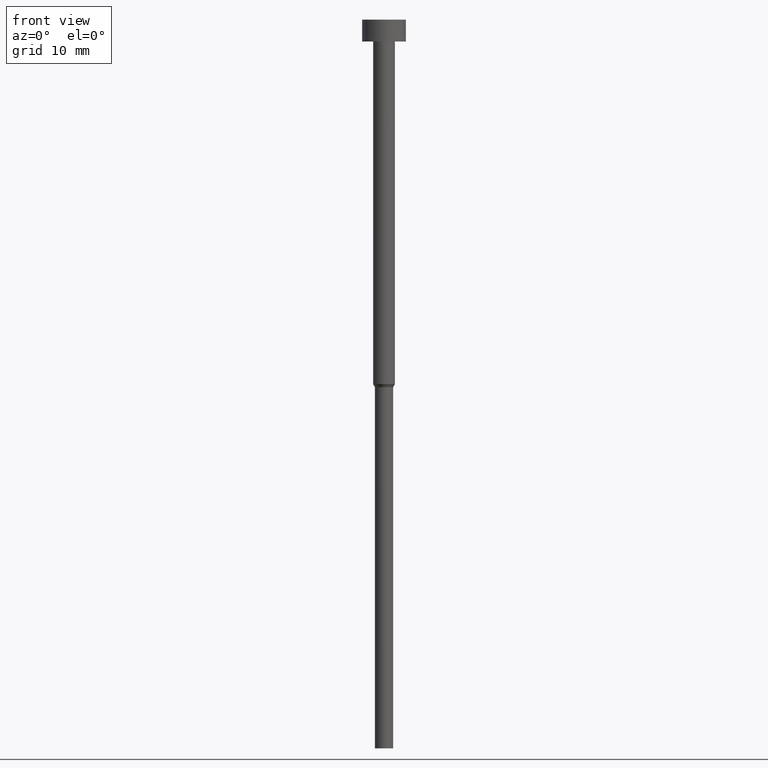
[diagram: clean part render]
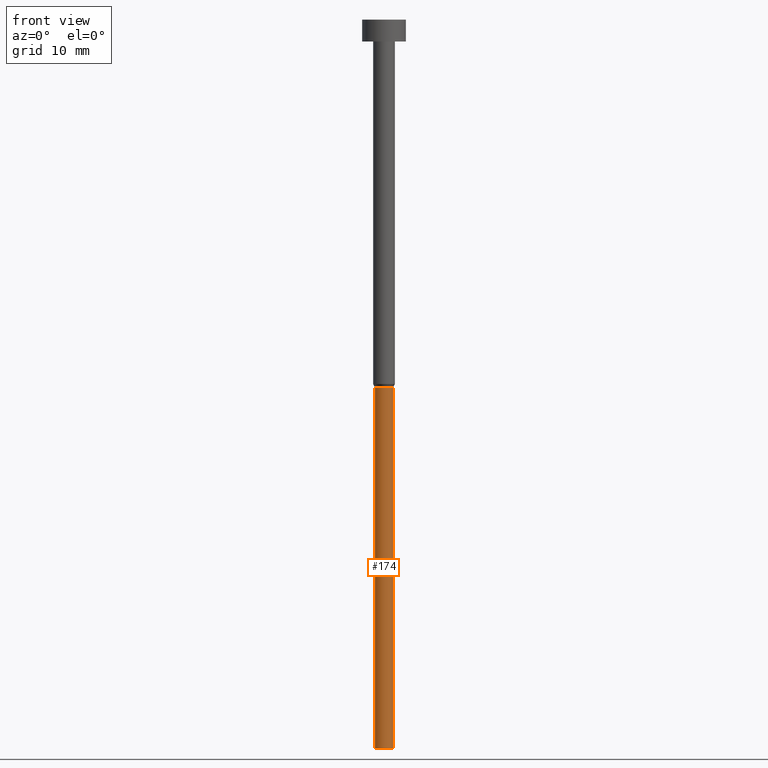
[diagram: same view with one face highlighted and labeled with its STEP entity id]
A machine part, front view. The second image highlights one B-rep face of the part: STEP entity #174.
In plain terms, the highlighted cylindrical surface (edge-blend (fillet) strip) has radius 1.25 mm, axis along (-0, -0, 1).
Its self-contained STEP definition (entity closure, byte-faithful):
#1 = DIRECTION ( 'NONE',  ( -0.000000000000000000, -0.000000000000000000, 1.000000000000000000 ) ) ;
#7 = CYLINDRICAL_SURFACE ( 'NONE', #135, 1.250000000000000000 ) ;
#10 = DIRECTION ( 'NONE',  ( -0.000000000000000000, -0.000000000000000000, 1.000000000000000000 ) ) ;
#25 = CARTESIAN_POINT ( 'NONE',  ( 0.000000000000000000, 0.000000000000000000, -100.0000000000000000 ) ) ;
#30 = CIRCLE ( 'NONE', #38, 1.250000000000000000 ) ;
#34 = DIRECTION ( 'NONE',  ( -0.000000000000000000, -0.000000000000000000, 1.000000000000000000 ) ) ;
#38 = AXIS2_PLACEMENT_3D ( 'NONE', #277, #34, #110 ) ;
#40 = EDGE_LOOP ( 'NONE', ( #347, #143, #345, #255 ) ) ;
#52 = EDGE_CURVE ( 'NONE', #231, #176, #81, .T. ) ;
#54 = CARTESIAN_POINT ( 'NONE',  ( -1.250000000000000000, 1.530808498934191571E-16, -100.0000000000000000 ) ) ;
#55 = CIRCLE ( 'NONE', #146, 1.250000000000000000 ) ;
#68 = VERTEX_POINT ( 'NONE', #313 ) ;
#77 = CARTESIAN_POINT ( 'NONE',  ( 1.250000000000000000, 0.000000000000000000, -100.0000000000000000 ) ) ;
#81 = LINE ( 'NONE', #272, #314 ) ;
#83 = CARTESIAN_POINT ( 'NONE',  ( -1.250000000000000000, 1.530808498934191571E-16, 0.000000000000000000 ) ) ;
#103 = DIRECTION ( 'NONE',  ( 1.000000000000000000, 0.000000000000000000, 0.000000000000000000 ) ) ;
#110 = DIRECTION ( 'NONE',  ( 1.000000000000000000, 0.000000000000000000, 0.000000000000000000 ) ) ;
#111 = CARTESIAN_POINT ( 'NONE',  ( 1.250000000000000000, 0.000000000000000000, -50.43301270189222407 ) ) ;
#119 = EDGE_CURVE ( 'NONE', #68, #176, #30, .T. ) ;
#129 = CARTESIAN_POINT ( 'NONE',  ( 0.000000000000000000, 0.000000000000000000, 0.000000000000000000 ) ) ;
#135 = AXIS2_PLACEMENT_3D ( 'NONE', #129, #153, #325 ) ;
#143 = ORIENTED_EDGE ( 'NONE', *, *, #261, .T. ) ;
#146 = AXIS2_PLACEMENT_3D ( 'NONE', #25, #1, #103 ) ;
#153 = DIRECTION ( 'NONE',  ( -0.000000000000000000, -0.000000000000000000, 1.000000000000000000 ) ) ;
#174 = ADVANCED_FACE ( 'NONE', ( #243 ), #7, .T. ) ;
#176 = VERTEX_POINT ( 'NONE', #111 ) ;
#195 = VECTOR ( 'NONE', #10, 1000.000000000000000 ) ;
#196 = DIRECTION ( 'NONE',  ( -0.000000000000000000, -0.000000000000000000, 1.000000000000000000 ) ) ;
#217 = LINE ( 'NONE', #83, #195 ) ;
#231 = VERTEX_POINT ( 'NONE', #77 ) ;
#243 = FACE_OUTER_BOUND ( 'NONE', #40, .T. ) ;
#255 = ORIENTED_EDGE ( 'NONE', *, *, #119, .F. ) ;
#256 = VERTEX_POINT ( 'NONE', #54 ) ;
#261 = EDGE_CURVE ( 'NONE', #256, #231, #55, .T. ) ;
#272 = CARTESIAN_POINT ( 'NONE',  ( 1.250000000000000000, 0.000000000000000000, 0.000000000000000000 ) ) ;
#277 = CARTESIAN_POINT ( 'NONE',  ( 0.000000000000000000, 0.000000000000000000, -50.43301270189222407 ) ) ;
#297 = EDGE_CURVE ( 'NONE', #256, #68, #217, .T. ) ;
#313 = CARTESIAN_POINT ( 'NONE',  ( -1.250000000000000000, 1.530808498934191571E-16, -50.43301270189222407 ) ) ;
#314 = VECTOR ( 'NONE', #196, 1000.000000000000000 ) ;
#325 = DIRECTION ( 'NONE',  ( 1.000000000000000000, 0.000000000000000000, 0.000000000000000000 ) ) ;
#345 = ORIENTED_EDGE ( 'NONE', *, *, #52, .T. ) ;
#347 = ORIENTED_EDGE ( 'NONE', *, *, #297, .F. ) ;